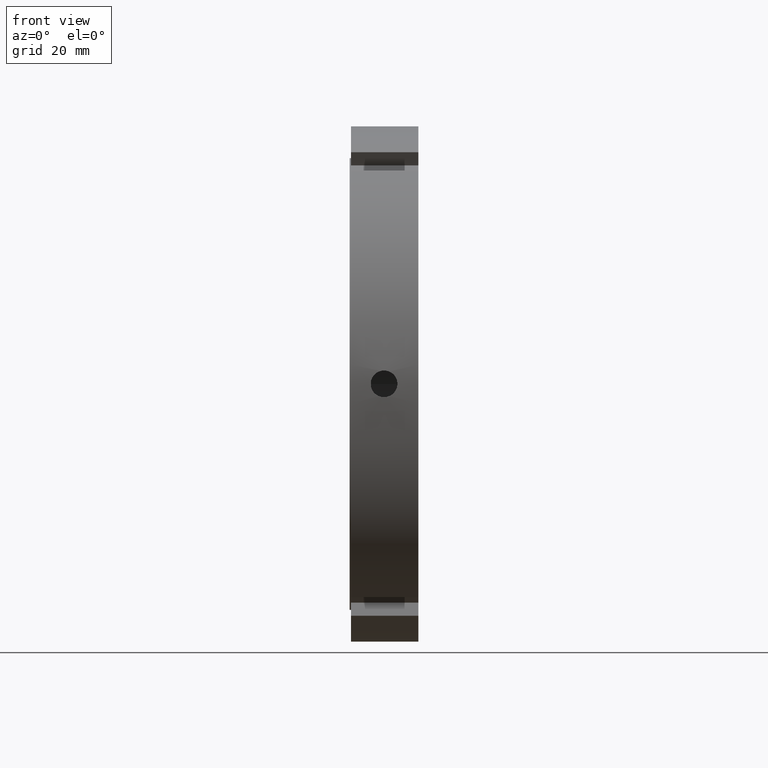
[diagram: clean part render]
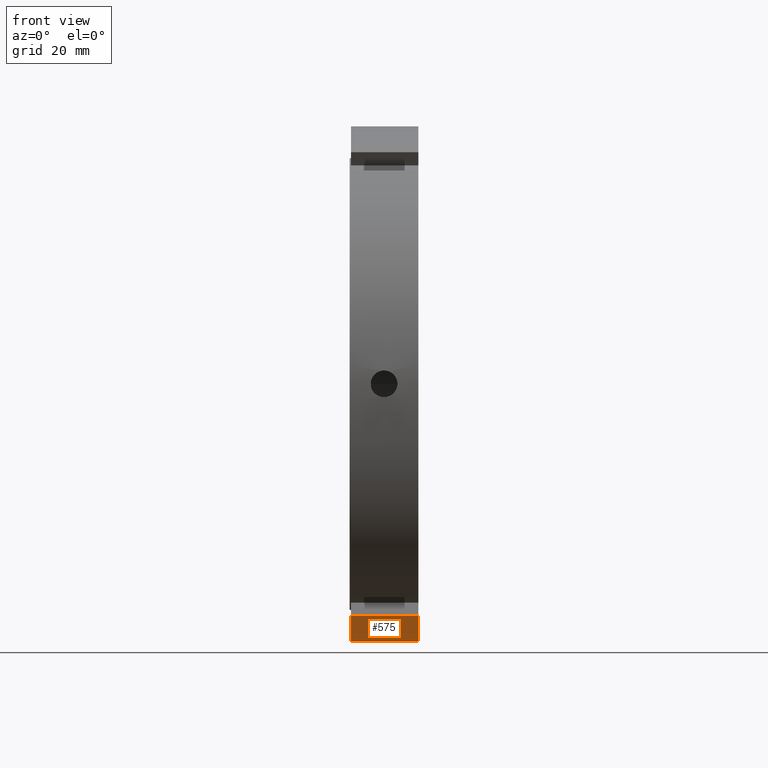
[diagram: same view with one face highlighted and labeled with its STEP entity id]
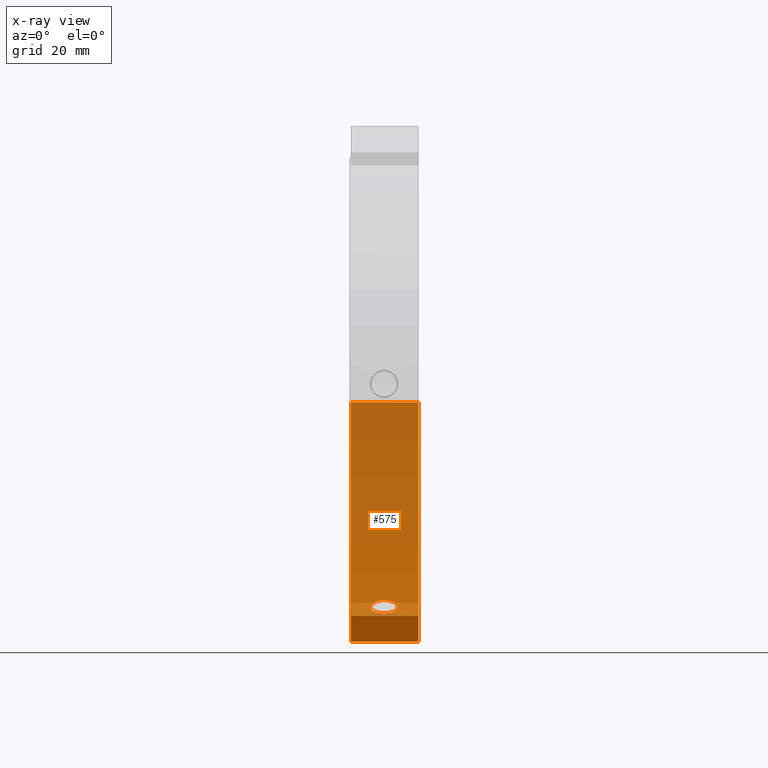
[diagram: x-ray of the same camera — body ghosted, the highlighted face saturated]
A machine part, front view. The second image highlights one B-rep face of the part: STEP entity #575.
The next image is the same camera in x-ray: the body ghosted, the highlighted face saturated — about 89% of this face is hidden behind the body in this view.
In plain terms, the highlighted cylindrical surface (partial cylindrical patch) has radius 97.5 mm, axis along (1, 0, 0).
Its self-contained STEP definition (entity closure, byte-faithful):
#113=CARTESIAN_POINT('',(0.499999999999972,-42.562018824970487,-87.719579077551785));
#114=VERTEX_POINT('',#113);
#123=CARTESIAN_POINT('',(25.999999999999979,-42.562018824970487,-87.719579077551785));
#124=VERTEX_POINT('',#123);
#125=CARTESIAN_POINT('',(25.999999999999979,-42.562018824970487,-87.719579077551771));
#126=DIRECTION('',(-1.0,0.0,0.0));
#127=VECTOR('',#126,25.500000000000007);
#128=LINE('',#125,#127);
#129=EDGE_CURVE('',#124,#114,#128,.T.);
#365=CARTESIAN_POINT('',(12.999999999999979,44.308460873940597,-86.850505438842859));
#366=VERTEX_POINT('',#365);
#367=CARTESIAN_POINT('',(12.999999999999979,44.308460873940604,-86.850505438842859));
#368=CARTESIAN_POINT('',(13.634587972057995,44.308460873940604,-86.850505438842859));
#369=CARTESIAN_POINT('',(14.311396599046715,44.421733616756342,-86.793007927745990));
#370=CARTESIAN_POINT('',(15.556317737733576,44.880714076694176,-86.556560390027798));
#371=CARTESIAN_POINT('',(16.124439886049629,45.226238366806875,-86.377305175773643));
#372=CARTESIAN_POINT('',(17.021581135228146,46.019634965223432,-85.957225896426408));
#373=CARTESIAN_POINT('',(17.410441637241558,46.520399372974481,-85.688330897072092));
#374=CARTESIAN_POINT('',(17.926154214932687,47.610881424182651,-85.087258621707662));
#375=CARTESIAN_POINT('',(18.052999999999972,48.200430829285743,-84.754770777632942));
#376=CARTESIAN_POINT('',(18.052999999999980,49.299569170714207,-84.120182960332599));
#377=CARTESIAN_POINT('',(17.926154214932694,49.882286792683971,-83.775862120764671));
#378=CARTESIAN_POINT('',(17.410441637241576,50.948071678264157,-83.132013099729662));
#379=CARTESIAN_POINT('',(17.021581135228153,51.431323782531123,-82.832785900983325));
#380=CARTESIAN_POINT('',(16.124439886049636,52.191821409257564,-82.355723931152042));
#381=CARTESIAN_POINT('',(15.556317737733586,52.519823123618878,-82.146118725416954));
#382=CARTESIAN_POINT('',(14.311396599046727,52.954082927914015,-81.866853756129217));
#383=CARTESIAN_POINT('',(13.634587972057997,53.060513604586141,-81.797505438842876));
#384=CARTESIAN_POINT('',(12.365412027941961,53.060513604586141,-81.797505438842876));
#385=CARTESIAN_POINT('',(11.688603400953230,52.954082927914015,-81.866853756129217));
#386=CARTESIAN_POINT('',(10.443682262266369,52.519823123618878,-82.146118725416954));
#387=CARTESIAN_POINT('',(9.875560113950320,52.191821409257564,-82.355723931152042));
#388=CARTESIAN_POINT('',(8.978418864771804,51.431323782531123,-82.832785900983325));
#389=CARTESIAN_POINT('',(8.589558362758382,50.948071678264164,-83.132013099729662));
#390=CARTESIAN_POINT('',(8.073845785067265,49.882286792683963,-83.775862120764671));
#391=CARTESIAN_POINT('',(7.946999999999976,49.299569170714207,-84.120182960332599));
#392=CARTESIAN_POINT('',(7.946999999999981,48.200430829285743,-84.754770777632942));
#393=CARTESIAN_POINT('',(8.073845785067272,47.610881424182665,-85.087258621707662));
#394=CARTESIAN_POINT('',(8.589558362758393,46.520399372974488,-85.688330897072092));
#395=CARTESIAN_POINT('',(8.978418864771806,46.019634965223432,-85.957225896426408));
#396=CARTESIAN_POINT('',(9.875560113950325,45.226238366806875,-86.377305175773643));
#397=CARTESIAN_POINT('',(10.443682262266380,44.880714076694176,-86.556560390027798));
#398=CARTESIAN_POINT('',(11.688603400953241,44.421733616756342,-86.793007927745990));
#399=CARTESIAN_POINT('',(12.365412027941963,44.308460873940604,-86.850505438842859));
#400=CARTESIAN_POINT('',(12.999999999999979,44.308460873940604,-86.850505438842859));
#401=B_SPLINE_CURVE_WITH_KNOTS('',3,(#367,#368,#369,#370,#371,#372,#373,#374,#375,#376,#377,#378,#379,#380,#381,#382,#383,#384,#385,#386,#387,#388,#389,#390,#391,#392,#393,#394,#395,#396,#397,#398,#399,#400),.UNSPECIFIED.,.T.,.U.,(4,2,2,2,2,2,2,2,2,2,2,2,2,2,2,2,4),(0.0,0.190376391617405,0.380752783234809,0.571129128424916,0.761505473615022,0.951881818805128,1.142258163995234,1.332634555612640,1.523010947230045,1.713387338847450,1.903763730464855,2.094140075654962,2.284516420845068,2.474892766035174,2.665269111225280,2.855645502842685,3.046021894460090),.UNSPECIFIED.);
#402=EDGE_CURVE('',#366,#366,#401,.T.);
#456=CARTESIAN_POINT('',(25.999999999999979,97.248393302923006,-6.999999999999995));
#457=VERTEX_POINT('',#456);
#458=CARTESIAN_POINT('',(25.999999999999979,0.0,0.0));
#459=DIRECTION('',(1.0,0.0,0.0));
#460=DIRECTION('',(0.0,1.0,0.0));
#461=AXIS2_PLACEMENT_3D('',#458,#459,#460);
#462=CIRCLE('',#461,97.500000000000000);
#463=EDGE_CURVE('',#124,#457,#462,.T.);
#548=CARTESIAN_POINT('',(13.249999999999975,0.0,0.0));
#549=DIRECTION('',(1.0,0.0,0.0));
#550=DIRECTION('',(0.0,1.0,0.0));
#551=AXIS2_PLACEMENT_3D('',#548,#549,#550);
#552=CYLINDRICAL_SURFACE('',#551,97.500000000000000);
#553=ORIENTED_EDGE('',*,*,#129,.T.);
#554=CARTESIAN_POINT('',(0.499999999999972,97.248393302923006,-6.999999999999995));
#555=VERTEX_POINT('',#554);
#556=CARTESIAN_POINT('',(0.499999999999972,0.0,0.0));
#557=DIRECTION('',(1.0,0.0,0.0));
#558=DIRECTION('',(0.0,1.0,0.0));
#559=AXIS2_PLACEMENT_3D('',#556,#557,#558);
#560=CIRCLE('',#559,97.500000000000000);
#561=EDGE_CURVE('',#114,#555,#560,.T.);
#562=ORIENTED_EDGE('',*,*,#561,.T.);
#563=CARTESIAN_POINT('',(0.499999999999972,97.248393302923006,-6.999999999999995));
#564=DIRECTION('',(1.0,0.0,0.0));
#565=VECTOR('',#564,25.500000000000007);
#566=LINE('',#563,#565);
#567=EDGE_CURVE('',#555,#457,#566,.T.);
#568=ORIENTED_EDGE('',*,*,#567,.T.);
#569=ORIENTED_EDGE('',*,*,#463,.F.);
#570=EDGE_LOOP('',(#553,#562,#568,#569));
#571=FACE_OUTER_BOUND('',#570,.T.);
#572=ORIENTED_EDGE('',*,*,#402,.T.);
#573=EDGE_LOOP('',(#572));
#574=FACE_BOUND('',#573,.T.);
#575=ADVANCED_FACE('',(#571,#574),#552,.T.);